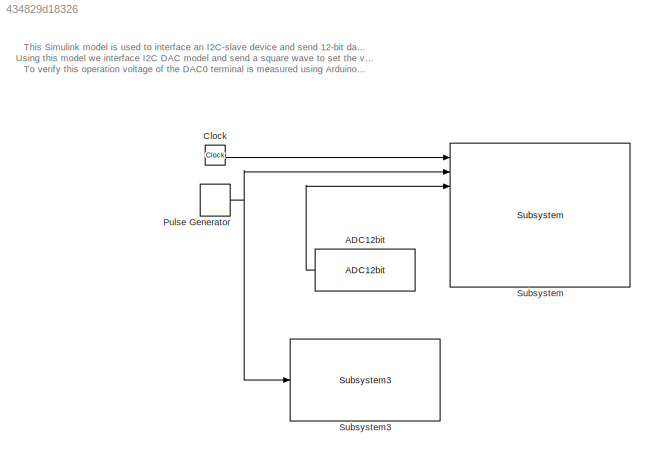
MODEL slx_434829d18326
KIND model
CONFIG AbsTol = auto
CONFIG EnableMultiTasking = on
CONFIG FixedStep = 0.1
CONFIG MaxStep = auto
CONFIG MinStep = auto
CONFIG RelTol = 1e-3
CONFIG SampleTimeConstraint = Unconstrained
CONFIG Solver = FixedStepAuto
CONFIG SolverName = FixedStepAuto
CONFIG StartTime = 0.0
CONFIG StopTime = inf
BLOCK [Reference] ADC12bit  REF=EEE481Arduino/ADC12bit
  Ports = [0, 1]
  SourceBlock = EEE481Arduino/ADC12bit
BLOCK [Clock] Clock
BLOCK [DiscretePulseGenerator] Pulse Generator
  Amplitude = 4000
  Period = 10
  Ports = [0, 1]
  PulseType = Time based
  PulseWidth = 5
BLOCK [Reference] Subsystem  REF=EEE481Arduino/Subsystem
  Ports = [9, 3]
  SourceBlock = EEE481Arduino/Subsystem
BLOCK [Reference] Subsystem3  REF=EEE481Arduino/Subsystem3
  Ports = [1]
  SourceBlock = EEE481Arduino/Subsystem3
ANNOTATION (root): This Simulink model is used to interface an I2C-slave device and send 12-bit data to that device Using this model we interface I2C DAC model and send a square wave to set the value of DAC0 To verify this operation voltage of the DAC0 terminal is measured using Arduino 12-bit ADC
LINE ADC12bit:1 -> Subsystem:3
LINE Clock:1 -> Subsystem:1
NET Pulse Generator:1 -> Subsystem3:1, Subsystem:2
note: NET lines group one-source signal fan-out (src -> all destinations, sorted); 1:1 wires keep LINE
